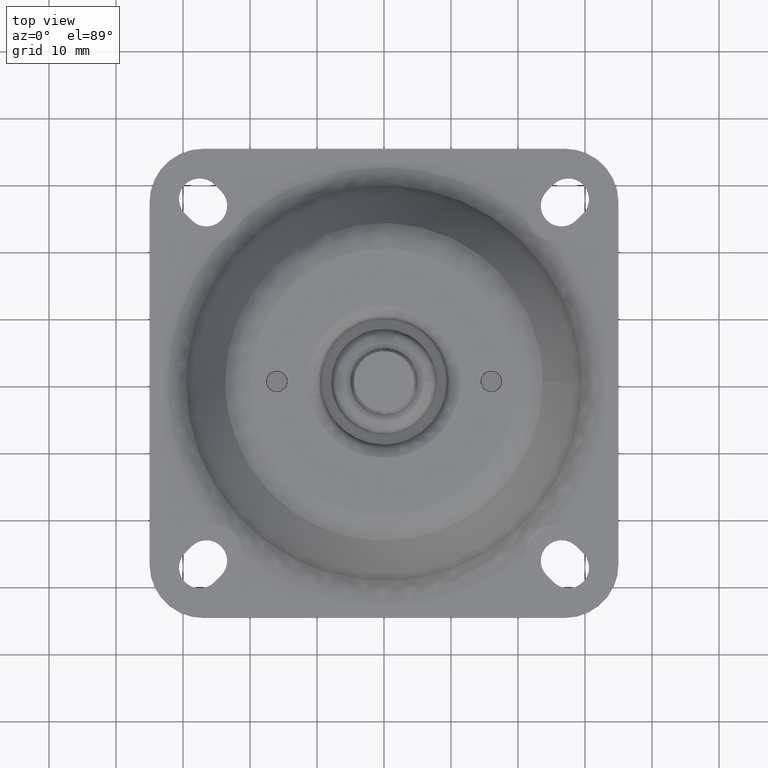
[diagram: clean part render]
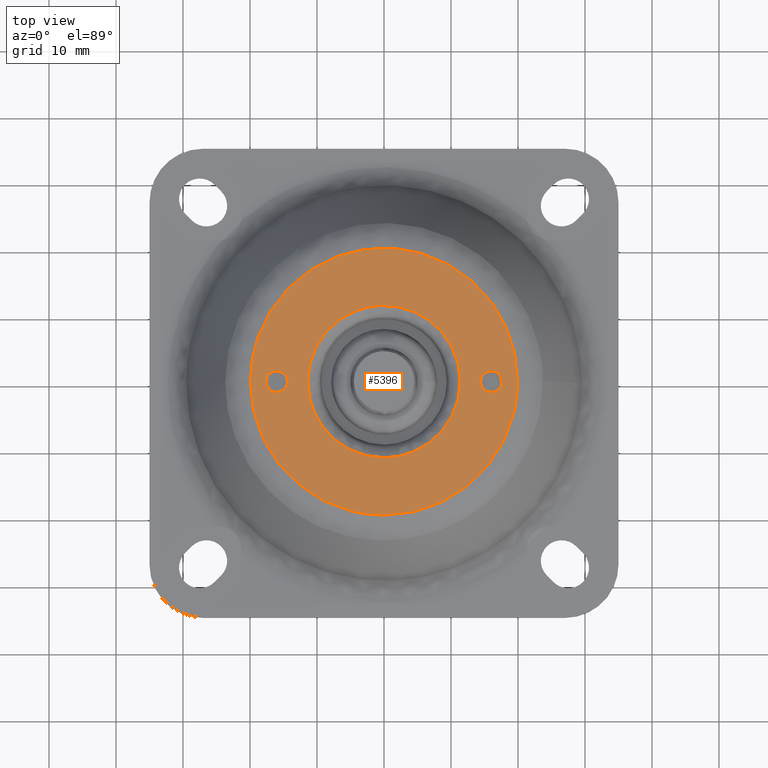
[diagram: same view with one face highlighted and labeled with its STEP entity id]
A machine part, top view. The second image highlights one B-rep face of the part: STEP entity #5396.
In plain terms, the highlighted face is a freeform B-spline surface patch.
Its self-contained STEP definition (entity closure, byte-faithful):
#1266=CARTESIAN_POINT('',(-17.198337226929208,1.060192009484092,28.0));
#1267=VERTEX_POINT('',#1266);
#1273=CARTESIAN_POINT('',(-17.600007999999999,0.0,28.0));
#1274=VERTEX_POINT('',#1273);
#1275=CARTESIAN_POINT('',(-17.600007999999999,0.0,28.0));
#1276=CARTESIAN_POINT('',(-17.600357369190888,0.229433870065827,27.999999999999979));
#1277=CARTESIAN_POINT('',(-17.515395384335189,0.615392024002578,28.000000000000011));
#1278=CARTESIAN_POINT('',(-17.302369862970810,0.942691318955513,28.000000000000039));
#1279=CARTESIAN_POINT('',(-17.198337226929208,1.060192009484092,28.0));
#1280=B_SPLINE_CURVE_WITH_KNOTS('',3,(#1275,#1276,#1277,#1278,#1279),.UNSPECIFIED.,.F.,.U.,(4,1,4),(0.000000036051475,0.688103160161885,1.158923261759022),.UNSPECIFIED.);
#1281=EDGE_CURVE('',#1274,#1267,#1280,.T.);
#1283=CARTESIAN_POINT('',(-16.000007958331061,-1.599999999999999,28.0));
#1284=VERTEX_POINT('',#1283);
#1285=CARTESIAN_POINT('',(-16.000007958331061,-1.599999999999999,28.0));
#1286=CARTESIAN_POINT('',(-16.235709971143780,-1.600367955402751,28.000000000000050));
#1287=CARTESIAN_POINT('',(-16.562635417969300,-1.526387376911817,27.999999999999979));
#1288=CARTESIAN_POINT('',(-16.959906810693031,-1.294739173281184,27.999999999999989));
#1289=CARTESIAN_POINT('',(-17.204210563607461,-1.073339199012547,28.000000000000039));
#1290=CARTESIAN_POINT('',(-17.416283258798050,-0.772228834726463,28.000000000000028));
#1291=CARTESIAN_POINT('',(-17.562646498984890,-0.418859598730612,27.999999999999901));
#1292=CARTESIAN_POINT('',(-17.600058770373110,-0.143990848455844,28.0));
#1293=CARTESIAN_POINT('',(-17.600007999999999,0.0,28.0));
#1294=B_SPLINE_CURVE_WITH_KNOTS('',3,(#1285,#1286,#1287,#1288,#1289,#1290,#1291,#1292,#1293),.UNSPECIFIED.,.F.,.U.,(4,1,1,1,1,1,4),(0.000000166142513,0.706876920886443,0.981794526527330,1.374451961091810,1.688636641254624,2.081369262852185,2.513337214433682),.UNSPECIFIED.);
#1295=EDGE_CURVE('',#1284,#1274,#1294,.T.);
#1297=CARTESIAN_POINT('',(-14.400008000000000,0.0,28.0));
#1298=VERTEX_POINT('',#1297);
#1299=CARTESIAN_POINT('',(-14.400008000000000,0.0,28.0));
#1300=CARTESIAN_POINT('',(-14.399645602460129,-0.235680390811087,28.000000000000050));
#1301=CARTESIAN_POINT('',(-14.491340466820811,-0.641158969260714,27.999999999999869));
#1302=CARTESIAN_POINT('',(-14.798890518861169,-1.089341521515637,28.000000000000188));
#1303=CARTESIAN_POINT('',(-15.125194783078779,-1.357028960410114,27.999999999999702));
#1304=CARTESIAN_POINT('',(-15.515755943634129,-1.547684693808181,28.000000000000188));
#1305=CARTESIAN_POINT('',(-15.816730026782301,-1.600121338918662,27.999999999999940));
#1306=CARTESIAN_POINT('',(-16.000007958331061,-1.599999999999999,28.0));
#1307=B_SPLINE_CURVE_WITH_KNOTS('',3,(#1299,#1300,#1301,#1302,#1303,#1304,#1305,#1306),.UNSPECIFIED.,.F.,.U.,(4,1,1,1,1,4),(0.000000166198701,0.706876907723612,1.217420593577317,1.610101186168039,1.963545752346068,2.513337167461895),.UNSPECIFIED.);
#1308=EDGE_CURVE('',#1298,#1284,#1307,.T.);
#1310=CARTESIAN_POINT('',(-14.939816004280450,1.198329211496368,27.999999999999989));
#1311=VERTEX_POINT('',#1310);
#1312=CARTESIAN_POINT('',(-14.939816004280450,1.198329211496368,27.999999999999989));
#1313=CARTESIAN_POINT('',(-14.823544448978669,1.095534557241187,28.000000000000011));
#1314=CARTESIAN_POINT('',(-14.630492968303271,0.866672360291529,28.0));
#1315=CARTESIAN_POINT('',(-14.443449158942750,0.451428120202294,27.999999999999989));
#1316=CARTESIAN_POINT('',(-14.399943522889030,0.155198473843652,28.000000000000021));
#1317=CARTESIAN_POINT('',(-14.400008000000000,0.0,28.0));
#1318=B_SPLINE_CURVE_WITH_KNOTS('',3,(#1312,#1313,#1314,#1315,#1316,#1317),.UNSPECIFIED.,.F.,.U.,(4,1,1,4),(0.000000040511491,0.465586925366640,0.888828187104189,1.354415071961402),.UNSPECIFIED.);
#1319=EDGE_CURVE('',#1311,#1298,#1318,.T.);
#1401=CARTESIAN_POINT('',(-16.000008041668949,1.599999999999999,28.0));
#1402=VERTEX_POINT('',#1401);
#1403=CARTESIAN_POINT('',(-16.000008041668949,1.599999999999999,28.0));
#1404=CARTESIAN_POINT('',(-15.843070457582920,1.600057052335565,28.000000000000011));
#1405=CARTESIAN_POINT('',(-15.456784182851999,1.542729905049330,27.999999999999929));
#1406=CARTESIAN_POINT('',(-15.111420053406521,1.350618053694060,28.000000000000099));
#1407=CARTESIAN_POINT('',(-14.939816004280450,1.198329211496368,27.999999999999989));
#1408=B_SPLINE_CURVE_WITH_KNOTS('',3,(#1403,#1404,#1405,#1406,#1407),.UNSPECIFIED.,.F.,.U.,(4,1,4),(0.000000036050110,0.470820151501477,1.158923295858467),.UNSPECIFIED.);
#1409=EDGE_CURVE('',#1402,#1311,#1408,.T.);
#1411=CARTESIAN_POINT('',(-17.198337226929208,1.060192009484092,28.0));
#1412=CARTESIAN_POINT('',(-17.095552389754420,1.176475904246858,27.999999999999979));
#1413=CARTESIAN_POINT('',(-16.888458357871230,1.351093062777951,27.999999999999989));
#1414=CARTESIAN_POINT('',(-16.479610187495489,1.548486059675054,28.000000000000011));
#1415=CARTESIAN_POINT('',(-16.183433242150929,1.600115105750280,27.999999999999979));
#1416=CARTESIAN_POINT('',(-16.000008041668949,1.599999999999999,28.0));
#1417=B_SPLINE_CURVE_WITH_KNOTS('',3,(#1411,#1412,#1413,#1414,#1415,#1416),.UNSPECIFIED.,.F.,.U.,(4,1,1,4),(0.000000040510133,0.465586914022278,0.804172471367024,1.354415038958432),.UNSPECIFIED.);
#1418=EDGE_CURVE('',#1267,#1402,#1417,.T.);
#1458=CARTESIAN_POINT('',(14.801670773070789,1.060192009484094,28.0));
#1459=VERTEX_POINT('',#1458);
#1465=CARTESIAN_POINT('',(14.400000000000000,0.0,28.0));
#1466=VERTEX_POINT('',#1465);
#1467=CARTESIAN_POINT('',(14.400000000000000,0.0,28.0));
#1468=CARTESIAN_POINT('',(14.399942215782920,0.156937911784127,28.000000000000039));
#1469=CARTESIAN_POINT('',(14.457273136447030,0.543222382454277,27.999999999999989));
#1470=CARTESIAN_POINT('',(14.649378855021061,0.888589358282918,27.999999999999901));
#1471=CARTESIAN_POINT('',(14.801670773070789,1.060192009484094,28.0));
#1472=B_SPLINE_CURVE_WITH_KNOTS('',3,(#1467,#1468,#1469,#1470,#1471),.UNSPECIFIED.,.F.,.U.,(4,1,4),(0.000000036051132,0.470820137646219,1.158923261759017),.UNSPECIFIED.);
#1473=EDGE_CURVE('',#1466,#1459,#1472,.T.);
#1475=CARTESIAN_POINT('',(16.000000041668940,-1.599999999999999,28.0));
#1476=VERTEX_POINT('',#1475);
#1477=CARTESIAN_POINT('',(16.000000041668940,-1.599999999999999,28.0));
#1478=CARTESIAN_POINT('',(15.790515906786689,-1.600241859095022,27.999999999999961));
#1479=CARTESIAN_POINT('',(15.463467944132660,-1.534761992452647,28.000000000000050));
#1480=CARTESIAN_POINT('',(15.013414455318200,-1.287125830512545,28.0));
#1481=CARTESIAN_POINT('',(14.712902083604430,-0.986566851162979,27.999999999999911));
#1482=CARTESIAN_POINT('',(14.465190194970351,-0.536544855040563,28.000000000000082));
#1483=CARTESIAN_POINT('',(14.399807815157640,-0.209474133520202,28.000000000000050));
#1484=CARTESIAN_POINT('',(14.400000000000000,0.0,28.0));
#1485=B_SPLINE_CURVE_WITH_KNOTS('',3,(#1477,#1478,#1479,#1480,#1481,#1482,#1483,#1484),.UNSPECIFIED.,.F.,.U.,(4,1,1,1,1,4),(0.000000166140930,0.628334563305670,0.981794526526389,1.531542774412665,1.885002952061407,2.513337214433681),.UNSPECIFIED.);
#1486=EDGE_CURVE('',#1476,#1466,#1485,.T.);
#1488=CARTESIAN_POINT('',(17.600000000000001,0.0,28.0));
#1489=VERTEX_POINT('',#1488);
#1490=CARTESIAN_POINT('',(17.600000000000001,0.0,28.0));
#1491=CARTESIAN_POINT('',(17.600366428388998,-0.235700086729951,27.999999999999979));
#1492=CARTESIAN_POINT('',(17.526397333902271,-0.562634506712217,28.000000000000050));
#1493=CARTESIAN_POINT('',(17.307955955766239,-0.937185002500917,27.999999999999961));
#1494=CARTESIAN_POINT('',(17.110374771306301,-1.166254638787352,27.999999999999972));
#1495=CARTESIAN_POINT('',(16.820073854762839,-1.392914287392321,28.000000000000139));
#1496=CARTESIAN_POINT('',(16.445045503084231,-1.559097867449358,27.999999999999691));
#1497=CARTESIAN_POINT('',(16.143989753616651,-1.600046250644252,28.000000000000330));
#1498=CARTESIAN_POINT('',(16.000000041668940,-1.599999999999999,28.0));
#1499=B_SPLINE_CURVE_WITH_KNOTS('',3,(#1490,#1491,#1492,#1493,#1494,#1495,#1496,#1497,#1498),.UNSPECIFIED.,.F.,.U.,(4,1,1,1,1,1,4),(0.000000166198743,0.706876907723890,0.981794508232400,1.295916546409789,1.610101186168210,2.081369223941276,2.513337167461898),.UNSPECIFIED.);
#1500=EDGE_CURVE('',#1489,#1476,#1499,.T.);
#1502=CARTESIAN_POINT('',(17.060191995719549,1.198329211496366,28.0));
#1503=VERTEX_POINT('',#1502);
#1504=CARTESIAN_POINT('',(17.060191995719549,1.198329211496366,28.0));
#1505=CARTESIAN_POINT('',(17.240155737252529,1.039672603556321,28.000000000000060));
#1506=CARTESIAN_POINT('',(17.509023844867400,0.662900381541423,27.999999999999929));
#1507=CARTESIAN_POINT('',(17.600236116471230,0.211657708078455,28.000000000000039));
#1508=CARTESIAN_POINT('',(17.600000000000001,0.0,28.0));
#1509=B_SPLINE_CURVE_WITH_KNOTS('',3,(#1504,#1505,#1506,#1507,#1508),.UNSPECIFIED.,.F.,.U.,(4,1,4),(0.000000040511656,0.719525636116434,1.354415071961393),.UNSPECIFIED.);
#1510=EDGE_CURVE('',#1503,#1489,#1509,.T.);
#1592=CARTESIAN_POINT('',(15.999999958331040,1.599999999999999,28.0));
#1593=VERTEX_POINT('',#1592);
#1594=CARTESIAN_POINT('',(15.999999958331040,1.599999999999999,28.0));
#1595=CARTESIAN_POINT('',(16.144867902856440,1.600050669413263,27.999999999999989));
#1596=CARTESIAN_POINT('',(16.410420483944709,1.563680876875531,28.000000000000060));
#1597=CARTESIAN_POINT('',(16.770768712763790,1.417738148235876,27.999999999999979));
#1598=CARTESIAN_POINT('',(16.969792554426469,1.278339745290850,28.0));
#1599=CARTESIAN_POINT('',(17.060191995719549,1.198329211496366,28.0));
#1600=B_SPLINE_CURVE_WITH_KNOTS('',3,(#1594,#1595,#1596,#1597,#1598,#1599),.UNSPECIFIED.,.F.,.U.,(4,1,1,4),(0.000000036050071,0.434596461020337,0.796755614489855,1.158923295858473),.UNSPECIFIED.);
#1601=EDGE_CURVE('',#1593,#1503,#1600,.T.);
#1603=CARTESIAN_POINT('',(14.801670773070789,1.060192009484094,28.0));
#1604=CARTESIAN_POINT('',(14.904463409415801,1.176466121232558,28.000000000000021));
#1605=CARTESIAN_POINT('',(15.111540717223690,1.351108136393874,28.000000000000011));
#1606=CARTESIAN_POINT('',(15.520406648359501,1.548460430000060,28.0));
#1607=CARTESIAN_POINT('',(15.816568753482930,1.600138137005214,27.999999999999989));
#1608=CARTESIAN_POINT('',(15.999999958331040,1.599999999999999,28.0));
#1609=B_SPLINE_CURVE_WITH_KNOTS('',3,(#1603,#1604,#1605,#1606,#1607,#1608),.UNSPECIFIED.,.F.,.U.,(4,1,1,4),(0.000000040509890,0.465586914022298,0.804172471367112,1.354415038958424),.UNSPECIFIED.);
#1610=EDGE_CURVE('',#1459,#1593,#1609,.T.);
#2299=CARTESIAN_POINT('',(-10.773552346378890,16.767795861292520,28.0));
#2300=VERTEX_POINT('',#2299);
#2312=CARTESIAN_POINT('',(16.124185823796580,11.714906730508650,28.0));
#2313=VERTEX_POINT('',#2312);
#2314=CARTESIAN_POINT('',(16.124185823796580,11.714906730508650,28.0));
#2315=CARTESIAN_POINT('',(15.616272905633870,12.414010885791090,28.000000000000021));
#2316=CARTESIAN_POINT('',(14.282975118699049,14.018573780867721,27.999999999999961));
#2317=CARTESIAN_POINT('',(12.060420483557230,15.970964132572840,28.000000000000099));
#2318=CARTESIAN_POINT('',(9.632033907734652,17.507134151107021,27.999999999999961));
#2319=CARTESIAN_POINT('',(7.246749011561800,18.629897075263781,27.999999999999979));
#2320=CARTESIAN_POINT('',(4.843804775925732,19.391409094191030,28.000000000000060));
#2321=CARTESIAN_POINT('',(2.094125705960265,19.882756811347161,28.000000000000021));
#2322=CARTESIAN_POINT('',(-0.622491411982568,19.993773239756500,27.999999999999812));
#2323=CARTESIAN_POINT('',(-3.519245090252257,19.682702609376982,28.000000000000721));
#2324=CARTESIAN_POINT('',(-5.925423881892958,19.078728497421721,27.999999999998739));
#2325=CARTESIAN_POINT('',(-8.387311459527910,18.140366059262028,28.000000000002601));
#2326=CARTESIAN_POINT('',(-9.881344475834037,17.341126528913239,27.999999999997431));
#2327=CARTESIAN_POINT('',(-10.773552346378890,16.767795861292520,28.0));
#2328=B_SPLINE_CURVE_WITH_KNOTS('',3,(#2314,#2315,#2316,#2317,#2318,#2319,#2320,#2321,#2322,#2323,#2324,#2325,#2326,#2327),.UNSPECIFIED.,.F.,.U.,(4,1,1,1,1,1,1,1,1,1,1,4),(0.000000048810211,2.592405191925359,6.245390033625842,8.837827700917948,11.194579460025601,14.140550863747171,16.379407205991409,19.561046442908228,22.271318618869358,25.099434921305988,26.984832987933029,30.166442608397439),.UNSPECIFIED.);
#2329=EDGE_CURVE('',#2313,#2300,#2328,.T.);
#2444=CARTESIAN_POINT('',(19.930589758856950,0.0,28.0));
#2445=VERTEX_POINT('',#2444);
#2446=CARTESIAN_POINT('',(19.930589758856950,0.0,28.0));
#2447=CARTESIAN_POINT('',(19.930706576616121,1.174017872264211,28.000000000000089));
#2448=CARTESIAN_POINT('',(19.757170236899281,3.130658016177090,27.999999999999861));
#2449=CARTESIAN_POINT('',(19.101300658682622,5.862475809630344,28.000000000000139));
#2450=CARTESIAN_POINT('',(18.046966741618728,8.677900021489963,28.000000000000121));
#2451=CARTESIAN_POINT('',(16.929449400904758,10.606927200709981,27.999999999999911));
#2452=CARTESIAN_POINT('',(16.124185823796580,11.714906730508650,28.0));
#2453=B_SPLINE_CURVE_WITH_KNOTS('',3,(#2446,#2447,#2448,#2449,#2450,#2451,#2452),.UNSPECIFIED.,.F.,.U.,(4,1,1,1,4),(7.893398E-009,3.522031097715008,5.870057639718091,8.413736315409093,12.522771446519929),.UNSPECIFIED.);
#2454=EDGE_CURVE('',#2445,#2313,#2453,.T.);
#2456=CARTESIAN_POINT('',(0.000000852249870,-19.930589758856929,28.0));
#2457=VERTEX_POINT('',#2456);
#2458=CARTESIAN_POINT('',(0.000000852249870,-19.930589758856929,28.0));
#2459=CARTESIAN_POINT('',(1.141401047946975,-19.930674945869811,28.000000000000028));
#2460=CARTESIAN_POINT('',(3.383404954313280,-19.737485097539139,27.999999999999972));
#2461=CARTESIAN_POINT('',(6.233535139973093,-18.995623118717401,28.000000000000082));
#2462=CARTESIAN_POINT('',(9.027807543948503,-17.848223586457159,27.999999999999911));
#2463=CARTESIAN_POINT('',(11.811956613159120,-16.202809458092680,28.000000000000249));
#2464=CARTESIAN_POINT('',(14.389473534219640,-13.923536311203931,27.999999999999840));
#2465=CARTESIAN_POINT('',(16.318746870300121,-11.542840066418099,27.999999999999869));
#2466=CARTESIAN_POINT('',(17.918074665250931,-8.929716370606011,28.000000000000242));
#2467=CARTESIAN_POINT('',(19.014459636174529,-6.236094985870527,27.999999999999581));
#2468=CARTESIAN_POINT('',(19.759574678180851,-3.098031587226796,28.000000000000242));
#2469=CARTESIAN_POINT('',(19.930718505034900,-1.182169791221891,28.000000000000021));
#2470=CARTESIAN_POINT('',(19.930589758856950,0.0,28.0));
#2471=B_SPLINE_CURVE_WITH_KNOTS('',3,(#2458,#2459,#2460,#2461,#2462,#2463,#2464,#2465,#2466,#2467,#2468,#2469,#2470),.UNSPECIFIED.,.F.,.U.,(4,1,1,1,1,1,1,1,1,1,4),(0.000000052442978,3.424192557781296,6.726098499337955,8.805083309478832,12.473863007694559,16.387209619361890,19.077653163743619,21.645808549314062,25.559189653098969,27.760462156435089,31.306945815161320),.UNSPECIFIED.);
#2472=EDGE_CURVE('',#2457,#2445,#2471,.T.);
#2474=CARTESIAN_POINT('',(-19.930589758856950,0.0,28.0));
#2475=VERTEX_POINT('',#2474);
#2476=CARTESIAN_POINT('',(-19.930589758856950,0.0,28.0));
#2477=CARTESIAN_POINT('',(-19.930768541317779,-1.345229260385511,27.999999999999989));
#2478=CARTESIAN_POINT('',(-19.715135764392191,-3.464881602369190,28.000000000000082));
#2479=CARTESIAN_POINT('',(-18.925465593338849,-6.423848980432835,28.000000000000060));
#2480=CARTESIAN_POINT('',(-17.838950102617328,-9.070103313436318,28.000000000000082));
#2481=CARTESIAN_POINT('',(-16.415220740434972,-11.412679335030781,28.000000000000110));
#2482=CARTESIAN_POINT('',(-14.564971684795831,-13.695617775580731,28.000000000000021));
#2483=CARTESIAN_POINT('',(-12.538273788919939,-15.601663882941180,28.000000000000469));
#2484=CARTESIAN_POINT('',(-10.067467461074290,-17.274551823794390,27.999999999999218));
#2485=CARTESIAN_POINT('',(-7.428321555524735,-18.572694159067741,28.000000000000171));
#2486=CARTESIAN_POINT('',(-4.117075432578925,-19.633000684890060,27.999999999999940));
#2487=CARTESIAN_POINT('',(-1.508289491769568,-19.930872525957781,27.999999999999972));
#2488=CARTESIAN_POINT('',(0.000000852249870,-19.930589758856929,28.0));
#2489=B_SPLINE_CURVE_WITH_KNOTS('',3,(#2476,#2477,#2478,#2479,#2480,#2481,#2482,#2483,#2484,#2485,#2486,#2487,#2488),.UNSPECIFIED.,.F.,.U.,(4,1,1,1,1,1,1,1,1,1,4),(0.000000052397997,4.035644637944767,6.359219733444334,9.171963311298121,12.596174940098431,14.552865301111080,17.977024385986141,20.912049286679402,23.480210093814431,26.782130169730099,31.306946775846921),.UNSPECIFIED.);
#2490=EDGE_CURVE('',#2475,#2457,#2489,.T.);
#2492=CARTESIAN_POINT('',(-10.773552346378890,16.767795861292520,28.0));
#2493=CARTESIAN_POINT('',(-11.515668839443650,16.291011031160341,28.000000000000082));
#2494=CARTESIAN_POINT('',(-13.020030704995470,15.176789531549300,27.999999999999911));
#2495=CARTESIAN_POINT('',(-14.947146229845419,13.277766027452270,28.000000000000039));
#2496=CARTESIAN_POINT('',(-16.754804746386089,10.929602983224390,28.000000000000110));
#2497=CARTESIAN_POINT('',(-18.121932920998940,8.472034875808268,27.999999999999641));
#2498=CARTESIAN_POINT('',(-19.108914896659069,5.843866056517452,28.000000000000409));
#2499=CARTESIAN_POINT('',(-19.760711261150309,3.113195258898179,27.999999999999741));
#2500=CARTESIAN_POINT('',(-19.930687345424470,1.141521999437280,27.999999999999840));
#2501=CARTESIAN_POINT('',(-19.930589758856950,0.0,28.0));
#2502=B_SPLINE_CURVE_WITH_KNOTS('',3,(#2492,#2493,#2494,#2495,#2496,#2497,#2498,#2499,#2500,#2501),.UNSPECIFIED.,.F.,.U.,(4,1,1,1,1,1,1,4),(0.000000016324829,2.646236570627831,5.603819262004961,8.094419224663378,11.518943656373880,14.009541385819960,16.500133551715759,19.924687464289459),.UNSPECIFIED.);
#2503=EDGE_CURVE('',#2300,#2475,#2502,.T.);
#3633=CARTESIAN_POINT('',(-11.374101877122239,-0.142938703857020,28.0));
#3634=VERTEX_POINT('',#3633);
#3647=CARTESIAN_POINT('',(0.071410341280672,-11.374775846721469,28.0));
#3648=VERTEX_POINT('',#3647);
#3649=CARTESIAN_POINT('',(0.071410341280672,-11.374775846721469,28.0));
#3650=CARTESIAN_POINT('',(-0.925012733523585,-11.381338998717521,27.999999999999901));
#3651=CARTESIAN_POINT('',(-2.293119613417856,-11.208832867045009,28.000000000000089));
#3652=CARTESIAN_POINT('',(-4.107470141822583,-10.636698522915550,27.999999999999989));
#3653=CARTESIAN_POINT('',(-5.419834426421776,-10.043445453873719,27.999999999999989));
#3654=CARTESIAN_POINT('',(-7.048189920996317,-9.011027423049850,28.000000000000071));
#3655=CARTESIAN_POINT('',(-8.603182232716222,-7.566872950161511,28.000000000000259));
#3656=CARTESIAN_POINT('',(-9.770666948920653,-5.912238213621631,27.999999999999709));
#3657=CARTESIAN_POINT('',(-10.629022915037419,-4.187442464417815,28.000000000000139));
#3658=CARTESIAN_POINT('',(-11.205541443251290,-2.342345415554600,28.000000000000291));
#3659=CARTESIAN_POINT('',(-11.365145696405691,-0.861220917063763,27.999999999999741));
#3660=CARTESIAN_POINT('',(-11.374101877122239,-0.142938703857020,28.0));
#3661=B_SPLINE_CURVE_WITH_KNOTS('',3,(#3649,#3650,#3651,#3652,#3653,#3654,#3655,#3656,#3657,#3658,#3659,#3660),.UNSPECIFIED.,.F.,.U.,(4,1,1,1,1,1,1,1,1,4),(0.000000059446130,2.989218060300726,4.101491992835499,5.700382893880603,7.299278443496579,9.871360110343387,12.026398451712740,13.347228206327321,15.641293214886360,17.796304255287211),.UNSPECIFIED.);
#3662=EDGE_CURVE('',#3648,#3634,#3661,.T.);
#3664=CARTESIAN_POINT('',(11.375000000000000,0.0,28.0));
#3665=VERTEX_POINT('',#3664);
#3666=CARTESIAN_POINT('',(11.375000000000000,0.0,28.0));
#3667=CARTESIAN_POINT('',(11.375055492130880,-0.648824774358031,28.000000000000039));
#3668=CARTESIAN_POINT('',(11.273608272596091,-1.830596799121597,27.999999999999961));
#3669=CARTESIAN_POINT('',(10.901523863682661,-3.341855247986342,28.000000000000039));
#3670=CARTESIAN_POINT('',(10.410402487526261,-4.644354926174626,27.999999999999890));
#3671=CARTESIAN_POINT('',(9.774925490730896,-5.884186794498712,28.000000000000060));
#3672=CARTESIAN_POINT('',(8.726621310799279,-7.390464300266002,27.999999999999861));
#3673=CARTESIAN_POINT('',(7.391909961427008,-8.725345009301359,28.000000000000039));
#3674=CARTESIAN_POINT('',(5.599910467967983,-9.973154315310538,27.999999999999940));
#3675=CARTESIAN_POINT('',(3.924341941436076,-10.737531999507279,28.0));
#3676=CARTESIAN_POINT('',(1.970759841161396,-11.250485181521860,28.000000000000050));
#3677=CARTESIAN_POINT('',(0.789745478819755,-11.370359194630220,28.000000000000039));
#3678=CARTESIAN_POINT('',(0.071410341280672,-11.374775846721469,28.0));
#3679=B_SPLINE_CURVE_WITH_KNOTS('',3,(#3666,#3667,#3668,#3669,#3670,#3671,#3672,#3673,#3674,#3675,#3676,#3677,#3678),.UNSPECIFIED.,.F.,.U.,(4,1,1,1,1,1,1,1,1,1,4),(0.000000059446954,1.946465378356525,3.545380313490648,4.657659985372771,6.117522265148578,7.716419999529302,10.149496237028460,11.748409882251920,14.251051235095600,15.641399427954781,17.796425101771948),.UNSPECIFIED.);
#3680=EDGE_CURVE('',#3665,#3648,#3679,.T.);
#3682=CARTESIAN_POINT('',(-0.793215736685783,11.347309539932100,28.0));
#3683=VERTEX_POINT('',#3682);
#3684=CARTESIAN_POINT('',(-0.793215736685783,11.347309539932100,28.0));
#3685=CARTESIAN_POINT('',(0.224854936811691,11.418810920280430,27.999999999999950));
#3686=CARTESIAN_POINT('',(2.084414031419138,11.297620124750660,28.000000000000199));
#3687=CARTESIAN_POINT('',(4.250447072996846,10.607764949849640,27.999999999999758));
#3688=CARTESIAN_POINT('',(5.789502078124557,9.822465629690985,28.000000000000259));
#3689=CARTESIAN_POINT('',(6.922304513042292,9.063542550741291,28.000000000000089));
#3690=CARTESIAN_POINT('',(8.116883394602244,8.025832992999769,27.999999999999790));
#3691=CARTESIAN_POINT('',(9.215297078051119,6.751421311814349,28.000000000000139));
#3692=CARTESIAN_POINT('',(10.223519270930311,5.111177232976342,27.999999999999240));
#3693=CARTESIAN_POINT('',(10.841065534026390,3.570883190012999,28.000000000000451));
#3694=CARTESIAN_POINT('',(11.269512472860249,1.822385842741682,27.999999999999780));
#3695=CARTESIAN_POINT('',(11.375083440992389,0.728972213769016,27.999999999999691));
#3696=CARTESIAN_POINT('',(11.375000000000000,0.0,28.0));
#3697=B_SPLINE_CURVE_WITH_KNOTS('',3,(#3684,#3685,#3686,#3687,#3688,#3689,#3690,#3691,#3692,#3693,#3694,#3695,#3696),.UNSPECIFIED.,.F.,.U.,(4,1,1,1,1,1,1,1,1,1,4),(0.000000068235405,3.061671556934220,5.540199536512377,6.779457407937521,8.237417249811617,9.622414261858113,11.517747615069300,13.267298558067139,15.381335211641529,16.474802663945351,18.661700163801559),.UNSPECIFIED.);
#3698=EDGE_CURVE('',#3683,#3665,#3697,.T.);
#3749=CARTESIAN_POINT('',(-11.375000000000000,0.0,28.0));
#3750=VERTEX_POINT('',#3749);
#3751=CARTESIAN_POINT('',(-11.375000000000000,0.0,28.0));
#3752=CARTESIAN_POINT('',(-11.375011137529491,0.533553514535830,27.999999999999961));
#3753=CARTESIAN_POINT('',(-11.290427154224041,1.734069743008943,28.000000000000110));
#3754=CARTESIAN_POINT('',(-10.885715550348850,3.473016245310036,27.999999999999819));
#3755=CARTESIAN_POINT('',(-10.202851962804580,5.120853892253651,28.000000000000242));
#3756=CARTESIAN_POINT('',(-9.309947305715470,6.612384003438618,27.999999999999890));
#3757=CARTESIAN_POINT('',(-8.171489003224783,7.986598837888008,27.999999999999378));
#3758=CARTESIAN_POINT('',(-6.891065761104238,9.097721254706434,28.000000000001489));
#3759=CARTESIAN_POINT('',(-5.544626067150024,9.968424317712046,27.999999999998462));
#3760=CARTESIAN_POINT('',(-4.257204371586345,10.582464382012979,28.000000000000430));
#3761=CARTESIAN_POINT('',(-2.648509797393848,11.108516356677550,28.0));
#3762=CARTESIAN_POINT('',(-1.502909797315889,11.297789446146730,27.999999999999950));
#3763=CARTESIAN_POINT('',(-0.793215736685783,11.347309539932100,28.0));
#3764=B_SPLINE_CURVE_WITH_KNOTS('',3,(#3751,#3752,#3753,#3754,#3755,#3756,#3757,#3758,#3759,#3760,#3761,#3762,#3763),.UNSPECIFIED.,.F.,.U.,(4,1,1,1,1,1,1,1,1,1,4),(9.488993E-009,1.600673493415773,3.601550874622104,5.335645307515424,6.936332698846357,8.803803389397309,10.671270910488349,12.005181885657700,13.605887160693660,14.939798135862469,17.074046028681131),.UNSPECIFIED.);
#3765=EDGE_CURVE('',#3750,#3683,#3764,.T.);
#3767=CARTESIAN_POINT('',(-11.374101877122239,-0.142938703857020,28.0));
#3768=CARTESIAN_POINT('',(-11.375000000000000,0.0,28.0));
#3769=QUASI_UNIFORM_CURVE('',1,(#3767,#3768),.UNSPECIFIED.,.F.,.U.);
#3770=EDGE_CURVE('',#3634,#3750,#3769,.T.);
#5361=CARTESIAN_POINT('',(21.921655598508050,-21.921525881721251,28.0));
#5362=CARTESIAN_POINT('',(-21.921656667668209,-21.921525881721251,28.0));
#5363=CARTESIAN_POINT('',(21.921655598508060,21.918930017442221,28.0));
#5364=CARTESIAN_POINT('',(-21.921656667668209,21.918930017442221,28.0));
#5365=B_SPLINE_SURFACE_WITH_KNOTS('',1,1,((#5361,#5363),(#5362,#5364)),.UNSPECIFIED.,.F.,.F.,.U.,(2,2),(2,2),(0.0,43.843312266176270),(0.0,43.840455899163473),.UNSPECIFIED.);
#5366=ORIENTED_EDGE('',*,*,#2490,.T.);
#5367=ORIENTED_EDGE('',*,*,#2472,.T.);
#5368=ORIENTED_EDGE('',*,*,#2454,.T.);
#5369=ORIENTED_EDGE('',*,*,#2329,.T.);
#5370=ORIENTED_EDGE('',*,*,#2503,.T.);
#5371=EDGE_LOOP('',(#5366,#5367,#5368,#5369,#5370));
#5372=FACE_OUTER_BOUND('',#5371,.T.);
#5373=ORIENTED_EDGE('',*,*,#3770,.T.);
#5374=ORIENTED_EDGE('',*,*,#3765,.T.);
#5375=ORIENTED_EDGE('',*,*,#3698,.T.);
#5376=ORIENTED_EDGE('',*,*,#3680,.T.);
#5377=ORIENTED_EDGE('',*,*,#3662,.T.);
#5378=EDGE_LOOP('',(#5373,#5374,#5375,#5376,#5377));
#5379=FACE_BOUND('',#5378,.T.);
#5380=ORIENTED_EDGE('',*,*,#1308,.T.);
#5381=ORIENTED_EDGE('',*,*,#1295,.T.);
#5382=ORIENTED_EDGE('',*,*,#1281,.T.);
#5383=ORIENTED_EDGE('',*,*,#1418,.T.);
#5384=ORIENTED_EDGE('',*,*,#1409,.T.);
#5385=ORIENTED_EDGE('',*,*,#1319,.T.);
#5386=EDGE_LOOP('',(#5380,#5381,#5382,#5383,#5384,#5385));
#5387=FACE_BOUND('',#5386,.T.);
#5388=ORIENTED_EDGE('',*,*,#1500,.T.);
#5389=ORIENTED_EDGE('',*,*,#1486,.T.);
#5390=ORIENTED_EDGE('',*,*,#1473,.T.);
#5391=ORIENTED_EDGE('',*,*,#1610,.T.);
#5392=ORIENTED_EDGE('',*,*,#1601,.T.);
#5393=ORIENTED_EDGE('',*,*,#1510,.T.);
#5394=EDGE_LOOP('',(#5388,#5389,#5390,#5391,#5392,#5393));
#5395=FACE_BOUND('',#5394,.T.);
#5396=ADVANCED_FACE('',(#5372,#5379,#5387,#5395),#5365,.F.);